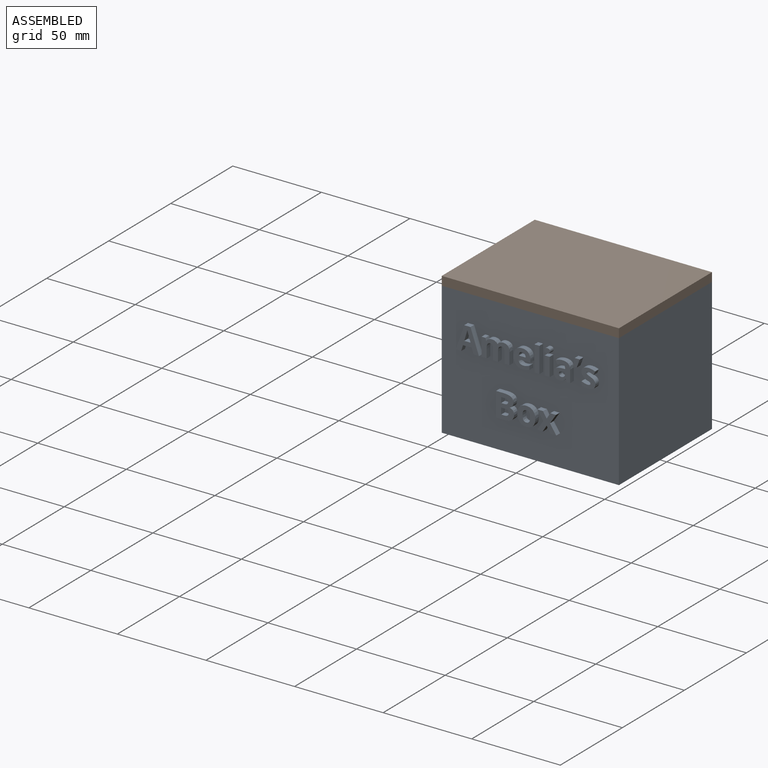
[diagram: assembled view]
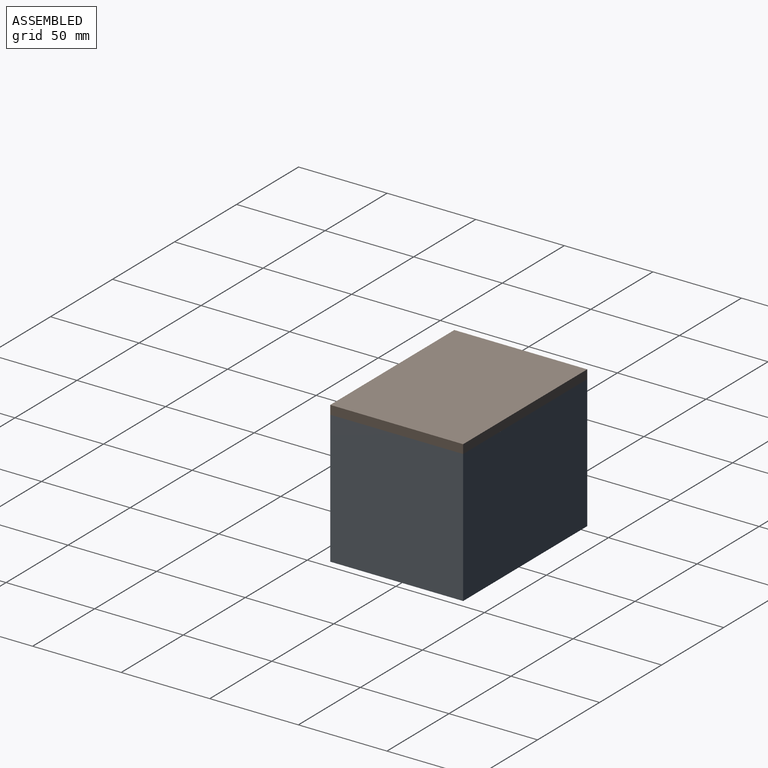
[diagram: assembled view, second angle]
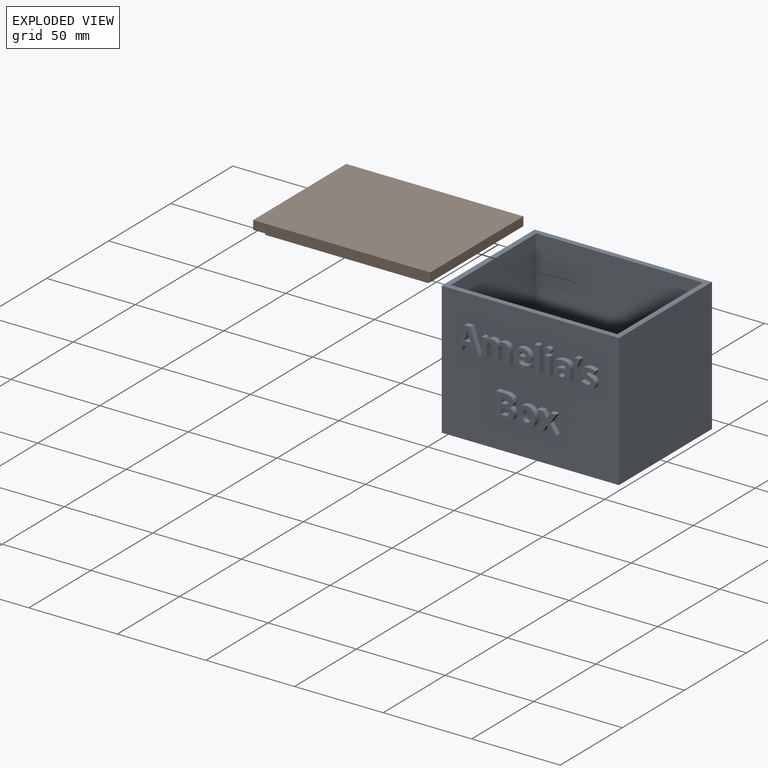
[diagram: exploded view]
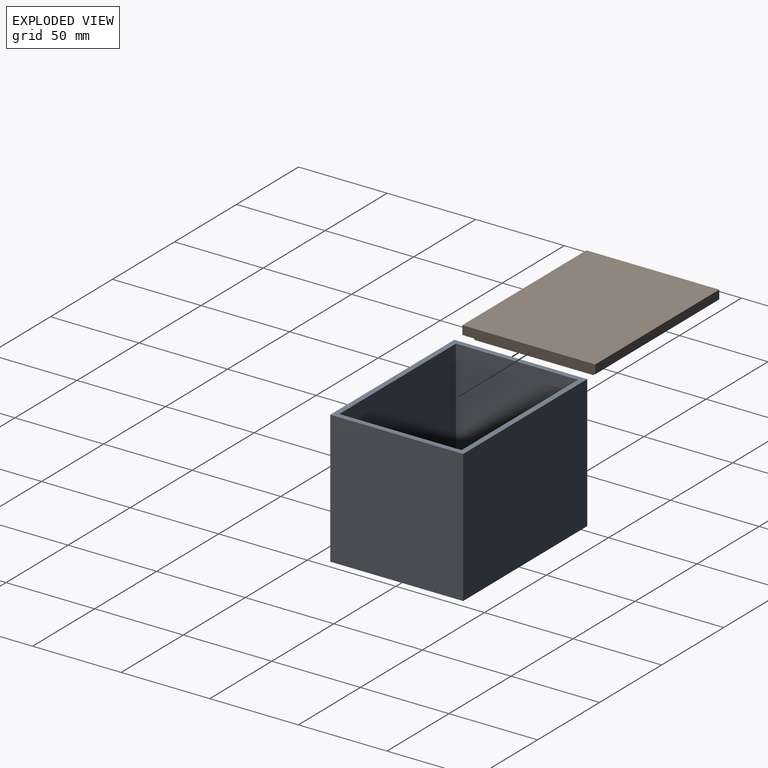
[diagram: exploded view, second angle]
ASSEMBLY  parts=2 mates=3
PART A: 213 faces, bbox 100x78x75 mm
  f0: plane 100x75mm, normal (0,-1,0), area 6738.7mm2, adj f1,f2,f4,f5,f14,f15,f16,f17
  f1: plane 100x75mm, normal (0,0,1), area 1014mm2, adj f0,f2,f3,f4,f6,f7,f8,f9
  f2: plane 75x75mm, normal (1,0,0), area 5625mm2, adj f0,f1,f3,f5
  f3: plane 100x75mm, normal (0,1,0), area 7500mm2, adj f1,f2,f4,f5
  f4: plane 75x75mm, normal (-1,0,0), area 5625mm2, adj f0,f1,f3,f5
  f5: plane 100x75mm, normal (0,0,-1), area 7500mm2, adj f0,f2,f3,f4
  f6: plane 72x69mm, normal (-1,0,0), area 4968mm2, adj f1,f7,f9,f10
  f7: plane 94x72mm, normal (0,-1,0), area 6768mm2, adj f1,f6,f8,f10
  f8: plane 72x69mm, normal (1,0,0), area 4968mm2, adj f1,f7,f9,f10
  f9: plane 94x72mm, normal (0,1,0), area 6768mm2, adj f1,f6,f8,f10
  f10: plane 94x69mm, normal (0,0,1), area 6486mm2, adj f6,f7,f8,f9
  f11: extruded ~4.96x3mm, area 15.6mm2, adj f12,f22,f23,f24
  f12: plane 3.53x3mm, normal (0,0,1), area 10.6mm2, adj f11,f13,f23,f24
  f13: extruded ~5.86x3mm, area 18.4mm2, adj f12,f22,f23,f24
  f14: plane 3.22x3mm, normal (-0.96,0,-0.29), area 10.1mm2, adj f0,f15,f21,f23
  f15: plane 3.09x3mm, normal (0,0,-1), area 9.3mm2, adj f0,f14,f16,f23
  f16: plane 13.6x4.8mm, normal (0.94,0,0.33), area 43.3mm2, adj f0,f15,f17,f23
  f17: plane 3.51x3mm, normal (0,0,1), area 10.5mm2, adj f0,f16,f18,f23
  f18: plane 13.6x4.78mm, normal (-0.94,0,0.33), area 43.2mm2, adj f0,f17,f19,f23
  f19: plane 3.09x3mm, normal (0,0,-1), area 9.3mm2, adj f0,f18,f20,f23
  f20: plane 3.22x3mm, normal (0.96,0,-0.29), area 10.1mm2, adj f0,f19,f21,f23
  f21: plane 4.94x3mm, normal (0,0,-1), area 14.8mm2, adj f0,f14,f20,f23
  f22: extruded ~3x0.91mm, area 2.8mm2, adj f11,f13,f23,f24
  f23: plane 13.6x13.09mm, normal (0,-1,0), area 83.6mm2, adj f11,f12,f13,f14,f15,f16,f17,f18
  f24: plane 5.86x3.53mm, normal (0,-1,0), area 10.1mm2, adj f11,f12,f13,f22
  f25: plane 3x2.82mm, normal (0,0,-1), area 8.5mm2, adj f0,f26,f52,f53
  f26: plane 5.2x3mm, normal (1,0,0), area 15.6mm2, adj f0,f25,f27,f53
  f27: extruded ~3x2.35mm, area 7.3mm2, adj f0,f26,f28,f53
  f28: extruded ~3x1.55mm, area 5.4mm2, adj f0,f27,f29,f53
  f29: extruded ~3x1.18mm, area 4.1mm2, adj f0,f28,f30,f53
  f30: extruded ~3x1.68mm, area 5.2mm2, adj f0,f29,f31,f53
  f31: plane 6.05x3mm, normal (-1,0,0), area 18.1mm2, adj f0,f30,f32,f53
  f32: plane 3x2.83mm, normal (0,0,-1), area 8.5mm2, adj f0,f31,f33,f53
  f33: plane 6.75x3mm, normal (1,0,0), area 20.3mm2, adj f0,f32,f34,f53
  f34: extruded ~3x2.89mm, area 9.3mm2, adj f0,f33,f35,f53
  f35: extruded ~3x2.66mm, area 8.7mm2, adj f0,f34,f36,f53
  f36: extruded ~3x1.83mm, area 5.7mm2, adj f0,f35,f37,f53
  f37: extruded ~3x1.23mm, area 5.1mm2, adj f0,f36,f38,f53
  f38: plane 3x0.25mm, normal (0,0,1), area 0.7mm2, adj f0,f37,f39,f53
  f39: extruded ~3.15x3mm, area 11.1mm2, adj f0,f38,f40,f53
  f40: extruded ~3x1.81mm, area 5.6mm2, adj f0,f39,f41,f53
  f41: extruded ~3x1.2mm, area 5mm2, adj f0,f40,f42,f53
  f42: plane 3x0.16mm, normal (0,0,1), area 0.5mm2, adj f0,f41,f43,f53
  f43: plane 3x1.32mm, normal (0.96,0,0.28), area 4.1mm2, adj f0,f42,f44,f53
  f44: plane 3x2.16mm, normal (0,0,1), area 6.5mm2, adj f0,f43,f45,f53
  f45: plane 10.36x3mm, normal (-1,0,0), area 31.1mm2, adj f0,f44,f46,f53
  f46: plane 3x2.82mm, normal (0,0,-1), area 8.5mm2, adj f0,f45,f47,f53
  f47: plane 4.87x3mm, normal (1,0,0), area 14.6mm2, adj f0,f46,f48,f53
  f48: extruded ~3x2.62mm, area 8.1mm2, adj f0,f47,f49,f53
  f49: extruded ~3x1.58mm, area 5.6mm2, adj f0,f48,f50,f53
  f50: extruded ~3x1.18mm, area 4.1mm2, adj f0,f49,f51,f53
  f51: extruded ~3x1.68mm, area 5.2mm2, adj f0,f50,f52,f53
  f52: plane 6.05x3mm, normal (-1,0,0), area 18.1mm2, adj f0,f25,f51,f53
  f53: plane 15.73x10.55mm, normal (0,-1,0), area 101.8mm2, adj f25,f26,f27,f28,f29,f30,f31,f32
  f54: extruded ~3.91x3mm, area 12.8mm2, adj f0,f55,f73,f74
  f55: extruded ~3x2.06mm, area 6.2mm2, adj f0,f54,f56,f74
  f56: extruded ~3x1.58mm, area 5mm2, adj f0,f55,f57,f74
  f57: plane 3x2.19mm, normal (1,0,0), area 6.6mm2, adj f0,f56,f58,f74
  f58: extruded ~3x1.74mm, area 5.6mm2, adj f0,f57,f59,f74
  f59: extruded ~3x1.77mm, area 5.4mm2, adj f0,f58,f60,f74
  f60: extruded ~3x1.87mm, area 6.1mm2, adj f0,f59,f61,f74
  f61: extruded ~3x1.88mm, area 6.2mm2, adj f0,f60,f62,f74
  f62: plane 6.68x3mm, normal (0,0,-1), area 20mm2, adj f0,f61,f63,f74
  f63: plane 3x1.37mm, normal (1,0,0), area 4.1mm2, adj f0,f62,f64,f74
  f64: extruded ~3.45x3mm, area 11.3mm2, adj f0,f63,f65,f74
  f65: extruded ~3.42x3mm, area 11.2mm2, adj f0,f64,f66,f74
  f66: extruded ~3.6x3mm, area 12mm2, adj f0,f65,f67,f74
  f67: extruded ~4.02x3mm, area 13mm2, adj f0,f66,f73,f74
  f68: extruded ~3x1.41mm, area 4.7mm2, adj f69,f72,f74,f75
  f69: extruded ~3x1.43mm, area 4.7mm2, adj f68,f70,f74,f75
  f70: extruded ~3x1.62mm, area 5.2mm2, adj f69,f71,f74,f75
  f71: plane 3.97x3mm, normal (0,0,1), area 11.9mm2, adj f70,f72,f74,f75
  f72: extruded ~3x1.62mm, area 5.2mm2, adj f68,f71,f74,f75
  f73: extruded ~3.91x3mm, area 12.8mm2, adj f0,f54,f67,f74
  f74: plane 10.73x9.54mm, normal (0,-1,0), area 64.7mm2, adj f54,f55,f56,f57,f58,f59,f60,f61
  f75: plane 3.97x2.18mm, normal (0,-1,0), area 7mm2, adj f68,f69,f70,f71,f72
  f76: plane 3x2.82mm, normal (0,0,-1), area 8.5mm2, adj f0,f77,f79,f80
  f77: plane 14.41x3mm, normal (1,0,0), area 43.2mm2, adj f0,f76,f78,f80
  f78: plane 3x2.82mm, normal (0,0,1), area 8.5mm2, adj f0,f77,f79,f80
  f79: plane 14.41x3mm, normal (-1,0,0), area 43.2mm2, adj f0,f76,f78,f80
  f80: plane 14.41x2.82mm, normal (0,-1,0), area 40.7mm2, adj f76,f77,f78,f79
  f81: extruded ~3x1.54mm, area 7.1mm2, adj f0,f82,f85,f86
  f82: extruded ~3x1.54mm, area 7.1mm2, adj f0,f81,f83,f86
  f83: extruded ~3x1.15mm, area 3.7mm2, adj f0,f82,f84,f86
  f84: extruded ~3x1.02mm, area 3.4mm2, adj f0,f83,f85,f86
  f85: extruded ~3x1.54mm, area 7.1mm2, adj f0,f81,f84,f86
  f86: plane 3.08x2.77mm, normal (0,-1,0), area 7.1mm2, adj f81,f82,f83,f84,f85
  f87: plane 3x2.82mm, normal (0,0,-1), area 8.5mm2, adj f0,f88,f90,f91
  f88: plane 10.36x3mm, normal (1,0,0), area 31.1mm2, adj f0,f87,f89,f91
  f89: plane 3x2.82mm, normal (0,0,1), area 8.5mm2, adj f0,f88,f90,f91
  f90: plane 10.36x3mm, normal (-1,0,0), area 31.1mm2, adj f0,f87,f89,f91
  f91: plane 10.36x2.82mm, normal (0,-1,0), area 29.2mm2, adj f87,f88,f89,f90
  f92: plane 3x1.09mm, normal (0.04,0,-1), area 3.3mm2, adj f93,f116,f117,f118
  f93: plane 3x0.85mm, normal (-1,0,0), area 2.6mm2, adj f92,f94,f117,f118
  f94: extruded ~3x1.5mm, area 5mm2, adj f93,f95,f117,f118
  f95: extruded ~3x1.57mm, area 5.1mm2, adj f94,f96,f117,f118
  f96: extruded ~3x1.37mm, area 6.3mm2, adj f95,f97,f117,f118
  f97: extruded ~3x1.24mm, area 4.3mm2, adj f96,f116,f117,f118
  f98: plane 3x1.41mm, normal (-0.93,0,-0.36), area 4.5mm2, adj f0,f99,f115,f117
  f99: plane 3x1.97mm, normal (0,0,-1), area 5.9mm2, adj f0,f98,f100,f117
  f100: plane 6.9x3mm, normal (1,0,0), area 20.7mm2, adj f0,f99,f101,f117
  f101: extruded ~3x2.76mm, area 9.2mm2, adj f0,f100,f102,f117
  f102: extruded ~3.19x3mm, area 10.2mm2, adj f0,f101,f103,f117
  f103: extruded ~3.96x3mm, area 12.3mm2, adj f0,f102,f104,f117
  f104: plane 3x1.91mm, normal (-0.9,0,-0.44), area 6.4mm2, adj f0,f103,f105,f117
  f105: extruded ~3x2.92mm, area 9.1mm2, adj f0,f104,f106,f117
  f106: extruded ~3x1.61mm, area 7.8mm2, adj f0,f105,f107,f117
  f107: plane 3x0.45mm, normal (-1,0,0), area 1.4mm2, adj f0,f106,f108,f117
  f108: plane 3x1.8mm, normal (-0.03,0,1), area 5.4mm2, adj f0,f107,f109,f117
  f109: extruded ~3.48x3mm, area 10.9mm2, adj f0,f108,f110,f117
  f110: extruded ~3x2.43mm, area 8.4mm2, adj f0,f109,f111,f117
  f111: extruded ~3x2.43mm, area 7.9mm2, adj f0,f110,f112,f117
  f112: extruded ~3x2.35mm, area 7.7mm2, adj f0,f111,f113,f117
  f113: extruded ~3x1.97mm, area 6mm2, adj f0,f112,f114,f117
  f114: extruded ~3x1.47mm, area 5.8mm2, adj f0,f113,f115,f117
  f115: plane 3x0.07mm, normal (0,0,-1), area 0.2mm2, adj f0,f98,f114,f117
  f116: extruded ~3x1.83mm, area 5.7mm2, adj f92,f97,f117,f118
  f117: plane 10.76x9.23mm, normal (0,-1,0), area 65.7mm2, adj f92,f93,f94,f95,f96,f97,f98,f99
  f118: plane 3.53x2.92mm, normal (0,-1,0), area 8.3mm2, adj f92,f93,f94,f95,f96,f97,f116
  f119: plane 3x0.2mm, normal (0.84,0,0.54), area 0.7mm2, adj f0,f120,f123,f124
  f120: plane 3x2.6mm, normal (0,0,1), area 7.8mm2, adj f0,f119,f121,f124
  f121: extruded ~4.64x3mm, area 14.2mm2, adj f0,f120,f122,f124
  f122: plane 3x2.03mm, normal (0,0,-1), area 6.1mm2, adj f0,f121,f123,f124
  f123: extruded ~4.44x3mm, area 14.2mm2, adj f0,f119,f122,f124
  f124: plane 4.64x3.66mm, normal (0,-1,0), area 11.4mm2, adj f119,f120,f121,f122,f123
  f125: extruded ~3x2.43mm, area 8.3mm2, adj f0,f126,f150,f151
  f126: extruded ~3x1.32mm, area 4.1mm2, adj f0,f125,f127,f151
  f127: extruded ~3x0.98mm, area 3.9mm2, adj f0,f126,f128,f151
  f128: extruded ~3x1.78mm, area 6mm2, adj f0,f127,f129,f151
  f129: extruded ~3x1.77mm, area 5.9mm2, adj f0,f128,f130,f151
  f130: extruded ~3x0.66mm, area 2.4mm2, adj f0,f129,f131,f151
  f131: extruded ~3x1.25mm, area 4.8mm2, adj f0,f130,f132,f151
  f132: extruded ~3x1.38mm, area 4.2mm2, adj f0,f131,f133,f151
  f133: extruded ~3x1.46mm, area 4.7mm2, adj f0,f132,f134,f151
  f134: plane 3x2.04mm, normal (0.92,0,-0.39), area 6.6mm2, adj f0,f133,f135,f151
  f135: extruded ~3.64x3mm, area 11.3mm2, adj f0,f134,f136,f151
  f136: extruded ~3.03x3mm, area 9.5mm2, adj f0,f135,f137,f151
  f137: extruded ~3x2.14mm, area 7.5mm2, adj f0,f136,f138,f151
  f138: extruded ~3x1.35mm, area 4.2mm2, adj f0,f137,f139,f151
  f139: extruded ~3x0.98mm, area 3.9mm2, adj f0,f138,f140,f151
  f140: extruded ~3x1.76mm, area 6mm2, adj f0,f139,f141,f151
  f141: extruded ~3x1.33mm, area 4.4mm2, adj f0,f140,f142,f151
  f142: extruded ~3x0.7mm, area 2.6mm2, adj f0,f141,f143,f151
  f143: extruded ~3x0.54mm, area 1.8mm2, adj f0,f142,f144,f151
  f144: extruded ~3x1.54mm, area 6mm2, adj f0,f143,f145,f151
  f145: extruded ~3x1.74mm, area 5.3mm2, adj f0,f144,f146,f151
  f146: extruded ~3x1.77mm, area 5.6mm2, adj f0,f145,f147,f151
  f147: plane 3x2.33mm, normal (-1,0,0), area 7mm2, adj f0,f146,f148,f151
  f148: extruded ~3x1.49mm, area 4.7mm2, adj f0,f147,f149,f151
  f149: extruded ~3x1.93mm, area 5.8mm2, adj f0,f148,f150,f151
  f150: extruded ~3.31x3mm, area 10.4mm2, adj f0,f125,f149,f151
  f151: plane 10.73x7.85mm, normal (0,-1,0), area 53.7mm2, adj f125,f126,f127,f128,f129,f130,f131,f132
  f152: plane 3.57x3mm, normal (1,0,0), area 10.7mm2, adj f153,f176,f177,f178
  f153: plane 3x1.8mm, normal (0,0,-1), area 5.4mm2, adj f152,f154,f177,f178
  f154: extruded ~3x2.43mm, area 10.1mm2, adj f153,f155,f177,f178
  f155: extruded ~3x1.41mm, area 4.7mm2, adj f154,f156,f177,f178
  f156: extruded ~3x1.77mm, area 5.6mm2, adj f155,f176,f177,f178
  f157: plane 3x1.68mm, normal (0,0,1), area 5.1mm2, adj f158,f174,f177,f179
  f158: plane 3.04x3mm, normal (1,0,0), area 9.1mm2, adj f157,f159,f177,f179
  f159: plane 3x1.53mm, normal (0,0,-1), area 4.6mm2, adj f158,f160,f177,f179
  f160: extruded ~3x1.82mm, area 5.6mm2, adj f159,f161,f177,f179
  f161: extruded ~3x1.13mm, area 4mm2, adj f160,f162,f177,f179
  f162: extruded ~3x1.21mm, area 4.1mm2, adj f161,f174,f177,f179
  f163: plane 4.26x3mm, normal (0,0,1), area 12.8mm2, adj f0,f164,f175,f177
  f164: plane 13.69x3mm, normal (-1,0,0), area 41.1mm2, adj f0,f163,f165,f177
  f165: plane 5.12x3mm, normal (0,0,-1), area 15.4mm2, adj f0,f164,f166,f177
  f166: extruded ~3.68x3mm, area 11.7mm2, adj f0,f165,f167,f177
  f167: extruded ~3x2.92mm, area 10mm2, adj f0,f166,f168,f177
  f168: extruded ~3x2.12mm, area 6.7mm2, adj f0,f167,f169,f177
  f169: extruded ~3x1.88mm, area 6.7mm2, adj f0,f168,f170,f177
  f170: plane 3x0.09mm, normal (1,0,0), area 0.3mm2, adj f0,f169,f171,f177
  f171: extruded ~3x1.53mm, area 5.5mm2, adj f0,f170,f172,f177
  f172: extruded ~3x2.02mm, area 6.4mm2, adj f0,f171,f173,f177
  f173: extruded ~3x2.64mm, area 9.3mm2, adj f0,f172,f175,f177
  f174: extruded ~3x1.71mm, area 5.3mm2, adj f157,f162,f177,f179
  f175: extruded ~4.23x3mm, area 13.1mm2, adj f0,f163,f173,f177
  f176: plane 3x1.89mm, normal (0,0,1), area 5.7mm2, adj f152,f156,f177,f178
  f177: plane 13.69x10.15mm, normal (0,-1,0), area 102.2mm2, adj f152,f153,f154,f155,f156,f157,f158,f159
  f178: plane 4.23x3.57mm, normal (0,-1,0), area 13.7mm2, adj f152,f153,f154,f155,f156,f176
  f179: plane 3.92x3.04mm, normal (0,-1,0), area 10.9mm2, adj f157,f158,f159,f160,f161,f162,f174
  f180: extruded ~4x3mm, area 13mm2, adj f0,f181,f197,f198
  f181: extruded ~3x2.88mm, area 8.9mm2, adj f0,f180,f182,f198
  f182: extruded ~3x1.88mm, area 7.9mm2, adj f0,f181,f183,f198
  f183: extruded ~3x2.66mm, area 8.3mm2, adj f0,f182,f184,f198
  f184: extruded ~3.77x3mm, area 12.4mm2, adj f0,f183,f185,f198
  f185: extruded ~3.99x3mm, area 12.9mm2, adj f0,f184,f186,f198
  f186: extruded ~3x2.88mm, area 8.9mm2, adj f0,f185,f187,f198
  f187: extruded ~3x1.9mm, area 7.9mm2, adj f0,f186,f188,f198
  f188: extruded ~3x2.66mm, area 8.3mm2, adj f0,f187,f197,f198
  f189: extruded ~3x2.35mm, area 7.3mm2, adj f190,f196,f198,f199
  f190: extruded ~3x2.34mm, area 7.3mm2, adj f189,f191,f198,f199
  f191: extruded ~3x1.65mm, area 5.7mm2, adj f190,f192,f198,f199
  f192: extruded ~3x1.66mm, area 5.7mm2, adj f191,f193,f198,f199
  f193: extruded ~3x2.33mm, area 7.3mm2, adj f192,f194,f198,f199
  f194: extruded ~3x2.36mm, area 7.3mm2, adj f193,f195,f198,f199
  f195: extruded ~3x1.65mm, area 5.7mm2, adj f194,f196,f198,f199
  f196: extruded ~3x1.66mm, area 5.8mm2, adj f189,f195,f198,f199
  f197: extruded ~3.76x3mm, area 12.4mm2, adj f0,f180,f188,f198
  f198: plane 10.85x10.15mm, normal (0,-1,0), area 67.1mm2, adj f180,f181,f182,f183,f184,f185,f186,f187
  f199: plane 6.26x4.32mm, normal (0,-1,0), area 22.7mm2, adj f189,f190,f191,f192,f193,f194,f195,f196
  f200: plane 5.12x3.37mm, normal (-0.84,0,-0.55), area 18.4mm2, adj f0,f201,f211,f212
  f201: plane 5.35x3.55mm, normal (-0.83,0,0.55), area 19.3mm2, adj f0,f200,f202,f212
  f202: plane 3.24x3mm, normal (0,0,-1), area 9.7mm2, adj f0,f201,f203,f212
  f203: plane 3.59x3mm, normal (0.85,0,-0.52), area 12.6mm2, adj f0,f202,f204,f212
  f204: plane 3.59x3mm, normal (-0.85,0,-0.52), area 12.6mm2, adj f0,f203,f205,f212
  f205: plane 3.25x3mm, normal (0,0,-1), area 9.8mm2, adj f0,f204,f206,f212
  f206: plane 5.35x3.57mm, normal (0.83,0,0.56), area 19.3mm2, adj f0,f205,f207,f212
  f207: plane 5.12x3.41mm, normal (0.83,0,-0.55), area 18.5mm2, adj f0,f206,f208,f212
  f208: plane 3.24x3mm, normal (0,0,1), area 9.7mm2, adj f0,f207,f209,f212
  f209: plane 3.34x3mm, normal (-0.85,0,0.52), area 11.7mm2, adj f0,f208,f210,f212
  f210: plane 3.34x3mm, normal (0.85,0,0.52), area 11.7mm2, adj f0,f209,f211,f212
  f211: plane 3.24x3mm, normal (0,0,1), area 9.7mm2, adj f0,f200,f210,f212
  f212: plane 10.9x10.47mm, normal (0,-1,0), area 61.3mm2, adj f200,f201,f202,f203,f204,f205,f206,f207
PART B: 11 faces, bbox 100x75x8 mm
  f0: plane 67x3mm, normal (1,0,0), area 201mm2, adj f1,f3,f4,f10
  f1: plane 92x3mm, normal (0,1,0), area 276mm2, adj f0,f2,f4,f10
  f2: plane 67x3mm, normal (-1,0,0), area 201mm2, adj f1,f3,f4,f10
  f3: plane 92x3mm, normal (0,-1,0), area 276mm2, adj f0,f2,f4,f10
  f4: plane 92x67mm, normal (0,0,-1), area 6164mm2, adj f0,f1,f2,f3
  f5: plane 75x5mm, normal (1,0,0), area 375mm2, adj f6,f8,f9,f10
  f6: plane 100x5mm, normal (0,1,0), area 500mm2, adj f5,f7,f9,f10
  f7: plane 75x5mm, normal (-1,0,0), area 375mm2, adj f6,f8,f9,f10
  f8: plane 100x5mm, normal (0,-1,0), area 500mm2, adj f5,f7,f9,f10
  f9: plane 100x75mm, normal (0,0,1), area 7500mm2, adj f5,f6,f7,f8
  f10: plane 100x75mm, normal (0,0,-1), area 1336mm2, adj f0,f1,f2,f3,f5,f6,f7,f8
PLACE A t=(-0.71,0,0)mm
PLACE B t=(-0.71,0,72)mm
MATE planar B.f5 <-> A.f2  axis (1,0,0) through (49.29,0,77.5)mm
MATE planar B.f8 <-> A.f0  axis (0,-1,0) through (-0.71,-37.5,77.5)mm
MATE planar B.f10 <-> A.f1  axis (0,0,-1) through (-0.71,0,75)mm
